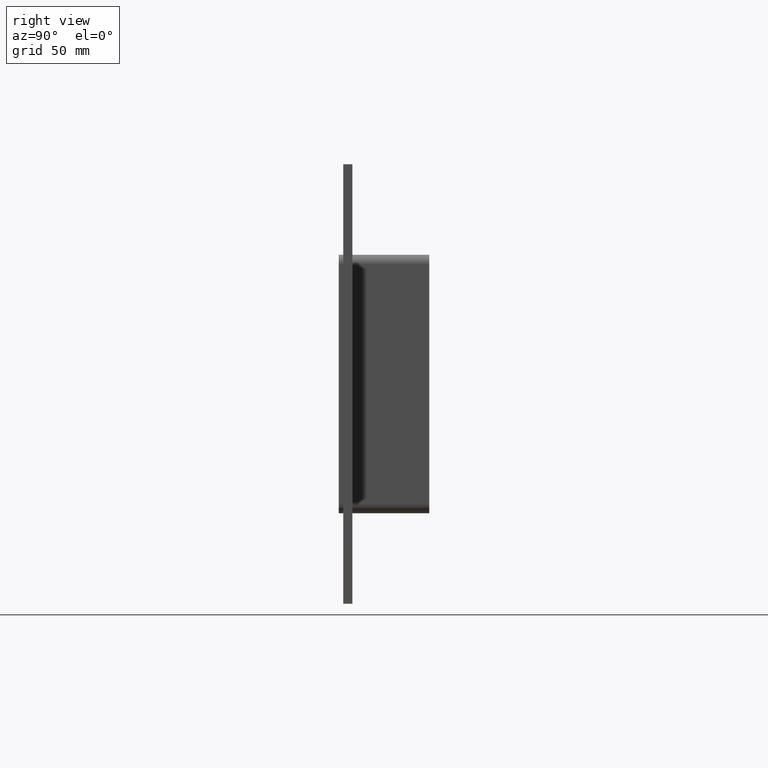
[diagram: clean part render]
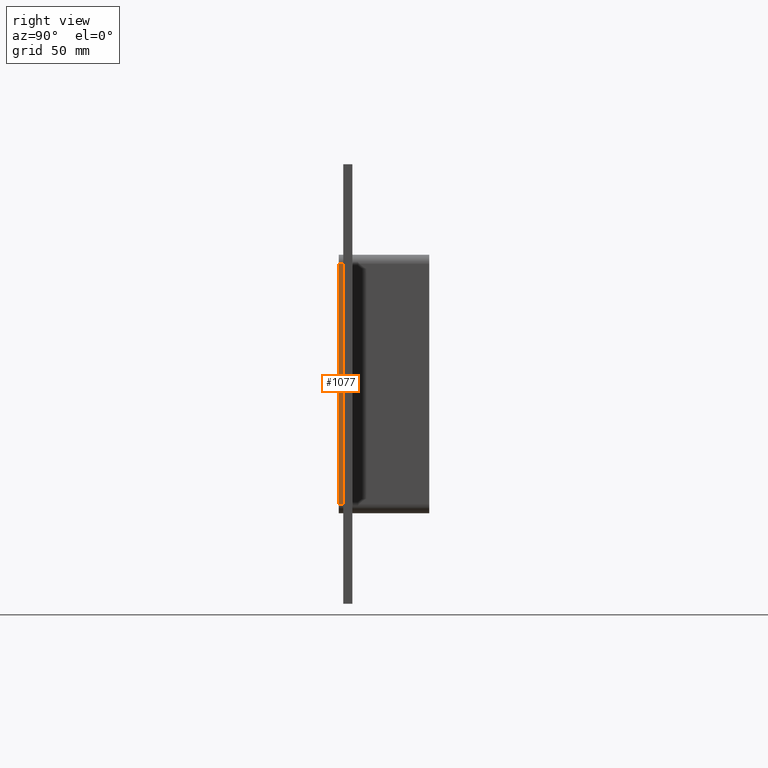
[diagram: same view with one face highlighted and labeled with its STEP entity id]
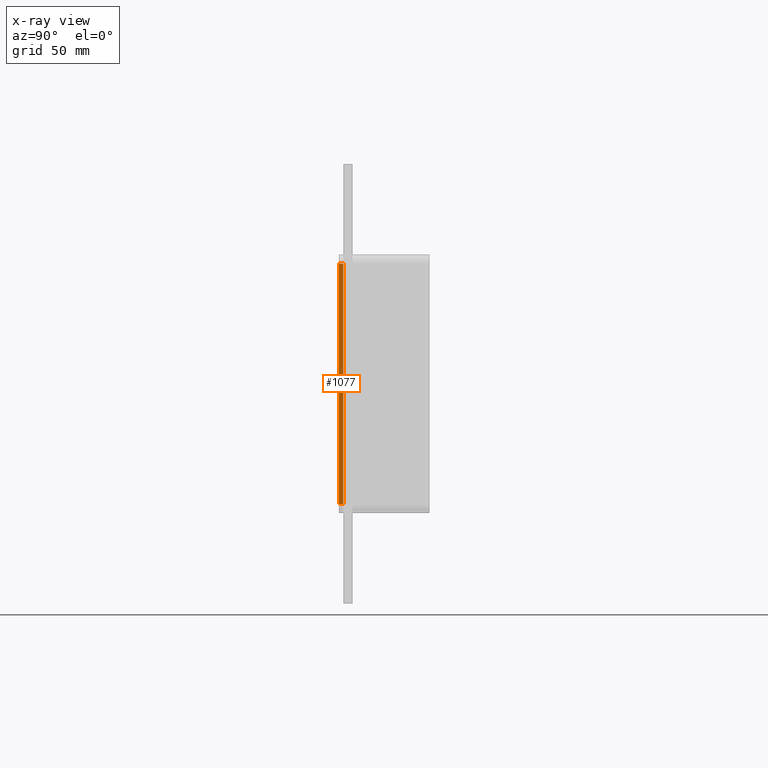
[diagram: x-ray of the same camera — body ghosted, the highlighted face saturated]
A machine part, right view. The second image highlights one B-rep face of the part: STEP entity #1077.
The next image is the same camera in x-ray: the body ghosted, the highlighted face saturated — about 0% of this face is hidden behind the body in this view.
In plain terms, the highlighted planar face has unit normal (1, 0, 0).
Its self-contained STEP definition (entity closure, byte-faithful):
#865=CARTESIAN_POINT('',(131.50000000000003,0.0,79.750000000000028));
#866=VERTEX_POINT('',#865);
#874=CARTESIAN_POINT('',(131.50000000000003,0.0,-79.750000000000028));
#875=VERTEX_POINT('',#874);
#876=CARTESIAN_POINT('',(131.50000000000003,0.0,-79.750000000000014));
#877=DIRECTION('',(0.0,0.0,1.0));
#878=VECTOR('',#877,159.50000000000006);
#879=LINE('',#876,#878);
#880=EDGE_CURVE('',#875,#866,#879,.T.);
#1004=CARTESIAN_POINT('',(131.50000000000003,-3.0,79.750000000000028));
#1005=VERTEX_POINT('',#1004);
#1013=CARTESIAN_POINT('',(131.50000000000003,-3.0,79.750000000000028));
#1014=DIRECTION('',(0.0,1.0,0.0));
#1015=VECTOR('',#1014,3.0);
#1016=LINE('',#1013,#1015);
#1017=EDGE_CURVE('',#1005,#866,#1016,.T.);
#1054=CARTESIAN_POINT('',(131.50000000000003,0.0,85.750000000000028));
#1055=DIRECTION('',(1.0,0.0,0.0));
#1056=DIRECTION('',(0.0,0.0,-1.0));
#1057=AXIS2_PLACEMENT_3D('',#1054,#1055,#1056);
#1058=PLANE('',#1057);
#1059=ORIENTED_EDGE('',*,*,#880,.T.);
#1060=ORIENTED_EDGE('',*,*,#1017,.F.);
#1061=CARTESIAN_POINT('',(131.50000000000003,-3.0,-79.750000000000014));
#1062=VERTEX_POINT('',#1061);
#1063=CARTESIAN_POINT('',(131.50000000000003,-3.0,-79.750000000000028));
#1064=DIRECTION('',(0.0,0.0,1.0));
#1065=VECTOR('',#1064,159.50000000000006);
#1066=LINE('',#1063,#1065);
#1067=EDGE_CURVE('',#1062,#1005,#1066,.T.);
#1068=ORIENTED_EDGE('',*,*,#1067,.F.);
#1069=CARTESIAN_POINT('',(131.50000000000003,0.0,-79.750000000000028));
#1070=DIRECTION('',(0.0,-1.0,0.0));
#1071=VECTOR('',#1070,3.0);
#1072=LINE('',#1069,#1071);
#1073=EDGE_CURVE('',#875,#1062,#1072,.T.);
#1074=ORIENTED_EDGE('',*,*,#1073,.F.);
#1075=EDGE_LOOP('',(#1059,#1060,#1068,#1074));
#1076=FACE_OUTER_BOUND('',#1075,.T.);
#1077=ADVANCED_FACE('',(#1076),#1058,.T.);